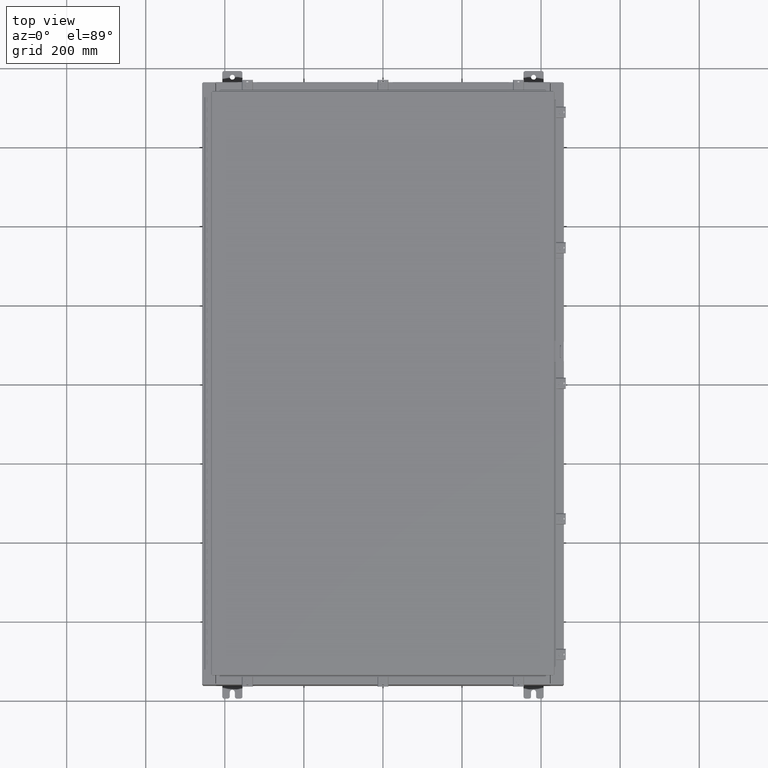
[diagram: clean part render]
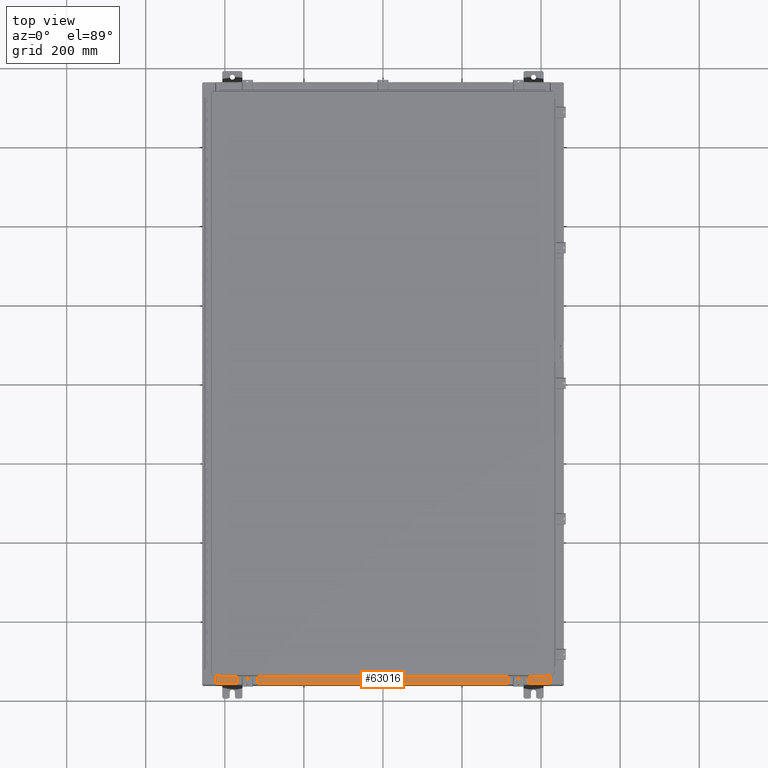
[diagram: same view with one face highlighted and labeled with its STEP entity id]
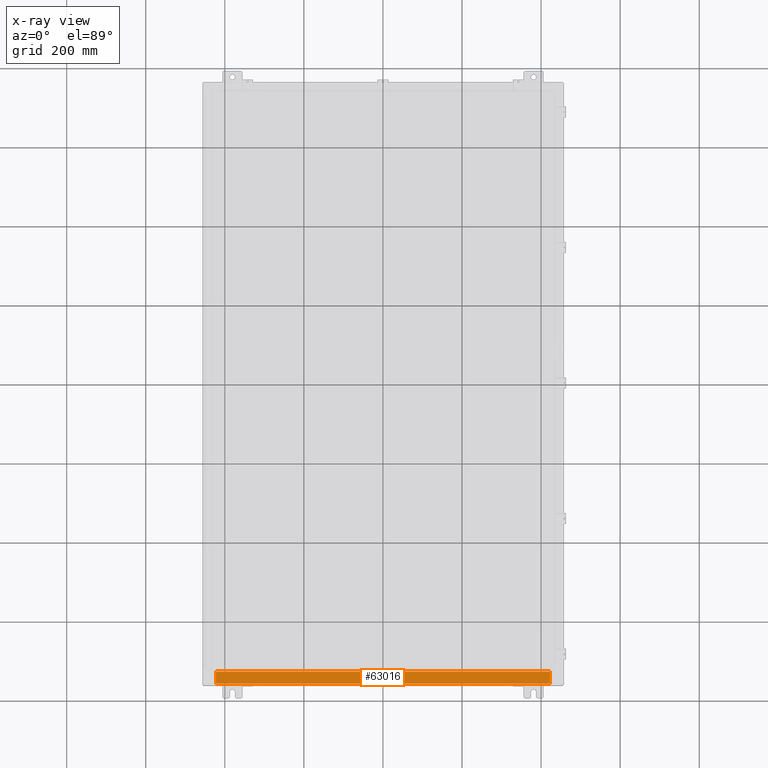
[diagram: x-ray of the same camera — body ghosted, the highlighted face saturated]
A machine part, top view. The second image highlights one B-rep face of the part: STEP entity #63016.
The next image is the same camera in x-ray: the body ghosted, the highlighted face saturated — about 0% of this face is hidden behind the body in this view.
In plain terms, the highlighted planar face has unit normal (-0, -0, 1).
Its self-contained STEP definition (entity closure, byte-faithful):
#2542 = CARTESIAN_POINT ( 'NONE',  ( 16.63720000000000700, -0.08769999999999937600, 4.000000000000000900 ) ) ;
#6428 = LINE ( 'NONE', #57778, #18093 ) ;
#8697 = CARTESIAN_POINT ( 'NONE',  ( -16.63719999999999600, -1.287299999999999200, 4.000000000000004400 ) ) ;
#14311 = AXIS2_PLACEMENT_3D ( 'NONE', #55833, #26170, #60804 ) ;
#16103 = PLANE ( 'NONE',  #14311 ) ;
#18093 = VECTOR ( 'NONE', #44042, 39.37007874015748100 ) ;
#20741 = EDGE_CURVE ( 'NONE', #22663, #59931, #6428, .T. ) ;
#22663 = VERTEX_POINT ( 'NONE', #2542 ) ;
#24347 = EDGE_CURVE ( 'NONE', #22663, #47711, #24521, .T. ) ;
#24521 = LINE ( 'NONE', #54396, #47908 ) ;
#26170 = DIRECTION ( 'NONE',  ( 0.0000000000000000000, 3.566381192773190000E-015, 1.000000000000000000 ) ) ;
#27592 = FACE_OUTER_BOUND ( 'NONE', #52948, .T. ) ;
#32752 = EDGE_CURVE ( 'NONE', #35306, #59931, #33817, .T. ) ;
#33817 = LINE ( 'NONE', #63781, #45435 ) ;
#34299 = DIRECTION ( 'NONE',  ( -0.0000000000000000000, 1.000000000000000000, -3.566381192773190000E-015 ) ) ;
#35306 = VERTEX_POINT ( 'NONE', #8697 ) ;
#35851 = ORIENTED_EDGE ( 'NONE', *, *, #24347, .F. ) ;
#44042 = DIRECTION ( 'NONE',  ( -1.000000000000000000, 3.284023746380717400E-017, -1.171208052571274300E-031 ) ) ;
#45435 = VECTOR ( 'NONE', #34299, 39.37007874015748100 ) ;
#47711 = VERTEX_POINT ( 'NONE', #48354 ) ;
#47908 = VECTOR ( 'NONE', #53337, 39.37007874015748100 ) ;
#48354 = CARTESIAN_POINT ( 'NONE',  ( 16.63720000000000400, -1.287299999999999900, 4.000000000000004400 ) ) ;
#52634 = CARTESIAN_POINT ( 'NONE',  ( 16.63720000000000700, -1.287299999999999900, 4.000000000000004400 ) ) ;
#52948 = EDGE_LOOP ( 'NONE', ( #54858, #58580, #35851, #63705 ) ) ;
#53162 = VECTOR ( 'NONE', #57607, 39.37007874015748100 ) ;
#53337 = DIRECTION ( 'NONE',  ( -0.0000000000000000000, -1.000000000000000000, 3.566381192773190000E-015 ) ) ;
#54396 = CARTESIAN_POINT ( 'NONE',  ( 16.63720000000000400, -1.300299999999999800, 4.000000000000004400 ) ) ;
#54733 = LINE ( 'NONE', #52634, #53162 ) ;
#54858 = ORIENTED_EDGE ( 'NONE', *, *, #32752, .F. ) ;
#55199 = EDGE_CURVE ( 'NONE', #47711, #35306, #54733, .T. ) ;
#55833 = CARTESIAN_POINT ( 'NONE',  ( 0.0000000000000000000, 1.425992975200418500E-014, 4.000000000000000900 ) ) ;
#57607 = DIRECTION ( 'NONE',  ( -1.000000000000000000, 0.0000000000000000000, 0.0000000000000000000 ) ) ;
#57778 = CARTESIAN_POINT ( 'NONE',  ( -2.880088825576348200E-018, -0.08769999999999972300, 4.000000000000000900 ) ) ;
#58147 = CARTESIAN_POINT ( 'NONE',  ( -16.63719999999999600, -0.08769999999999972300, 4.000000000000000900 ) ) ;
#58580 = ORIENTED_EDGE ( 'NONE', *, *, #55199, .F. ) ;
#59931 = VERTEX_POINT ( 'NONE', #58147 ) ;
#60804 = DIRECTION ( 'NONE',  ( 0.0000000000000000000, -1.000000000000000000, 3.566381192773190000E-015 ) ) ;
#63016 = ADVANCED_FACE ( 'NONE', ( #27592 ), #16103, .T. ) ;
#63705 = ORIENTED_EDGE ( 'NONE', *, *, #20741, .T. ) ;
#63781 = CARTESIAN_POINT ( 'NONE',  ( -16.63719999999999600, -0.07469999999999973900, 4.000000000000000900 ) ) ;